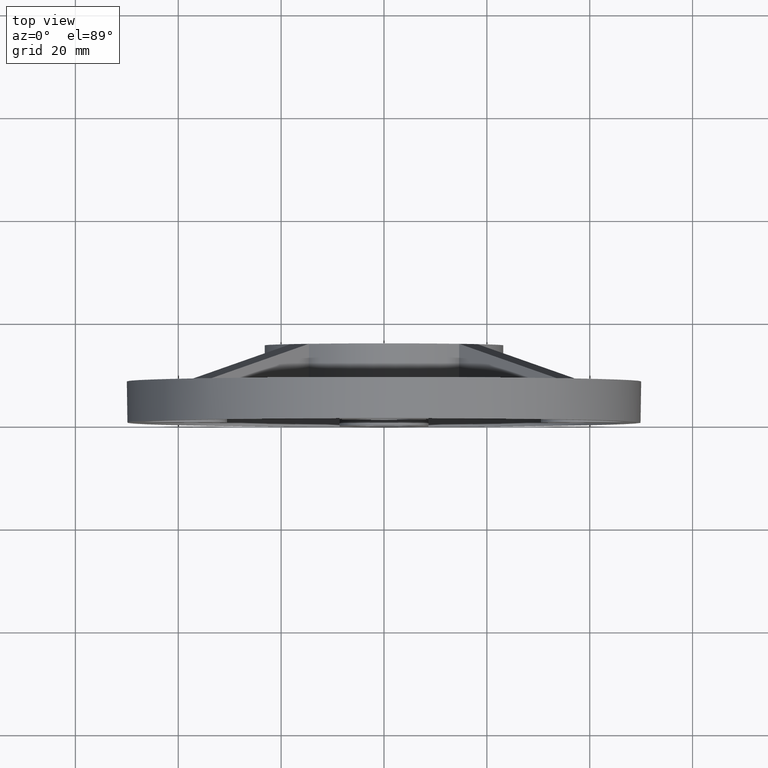
[diagram: clean part render]
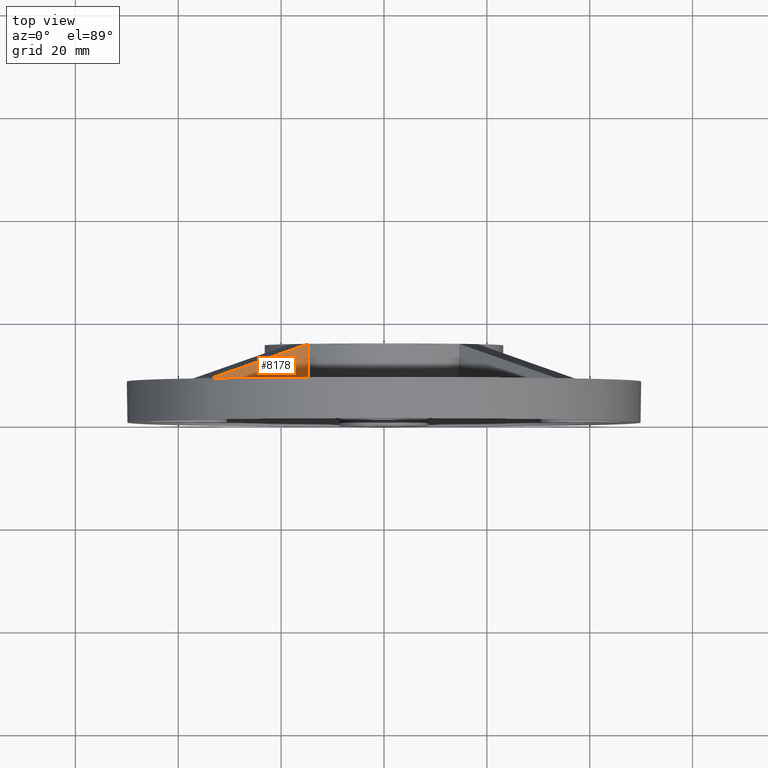
[diagram: same view with one face highlighted and labeled with its STEP entity id]
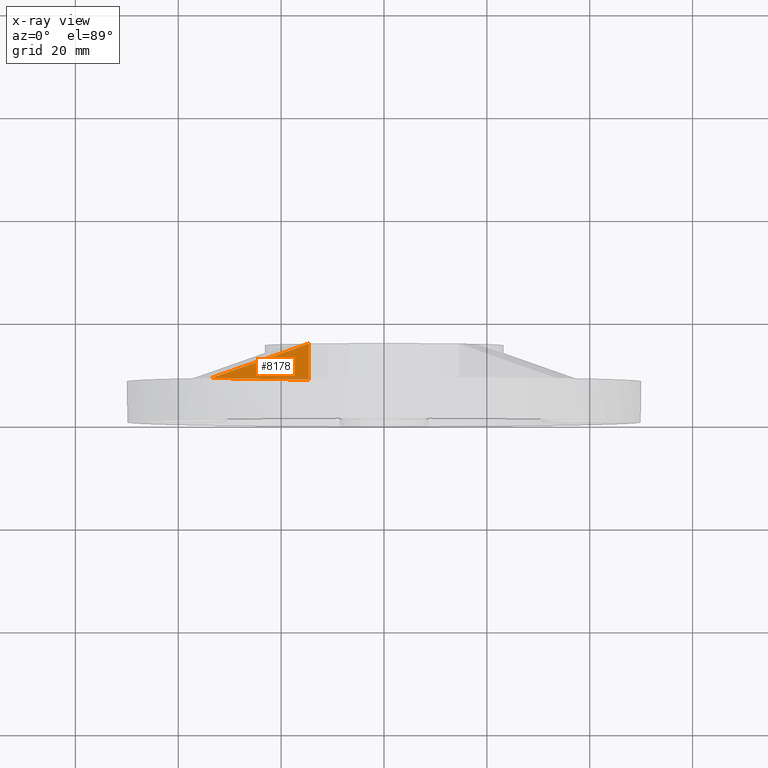
[diagram: x-ray of the same camera — body ghosted, the highlighted face saturated]
A machine part, top view. The second image highlights one B-rep face of the part: STEP entity #8178.
The next image is the same camera in x-ray: the body ghosted, the highlighted face saturated — about 6% of this face is hidden behind the body in this view.
In plain terms, the highlighted planar face has unit normal (-0.7071, 0, -0.7071).
Its self-contained STEP definition (entity closure, byte-faithful):
#587 = VERTEX_POINT ( 'NONE', #5414 ) ;
#700 = PLANE ( 'NONE',  #2635 ) ;
#1827 = CARTESIAN_POINT ( 'NONE',  ( -14.61270923058828153, 8.000000000000000000, 18.14824313652095711 ) ) ;
#1984 = VECTOR ( 'NONE', #3430, 999.9999999999998863 ) ;
#2635 = AXIS2_PLACEMENT_3D ( 'NONE', #6661, #5709, #9037 ) ;
#2703 = EDGE_LOOP ( 'NONE', ( #2907, #2832, #3196 ) ) ;
#2832 = ORIENTED_EDGE ( 'NONE', *, *, #7754, .T. ) ;
#2907 = ORIENTED_EDGE ( 'NONE', *, *, #4103, .F. ) ;
#3026 = LINE ( 'NONE', #3282, #9334 ) ;
#3196 = ORIENTED_EDGE ( 'NONE', *, *, #8785, .T. ) ;
#3282 = CARTESIAN_POINT ( 'NONE',  ( -9.114426070298650373, 17.03310506118020839, 12.64995997623135793 ) ) ;
#3430 = DIRECTION ( 'NONE',  ( 0.7071067811865486830, -0.000000000000000000, -0.7071067811865464625 ) ) ;
#3849 = DIRECTION ( 'NONE',  ( -0.6841087168591885037, -0.2529634895287306007, 0.6841087168591863943 ) ) ;
#4103 = EDGE_CURVE ( 'NONE', #7292, #7252, #6322, .T. ) ;
#4125 = VECTOR ( 'NONE', #4532, 1000.000000000000000 ) ;
#4532 = DIRECTION ( 'NONE',  ( -0.000000000000000000, -1.000000000000000000, -0.000000000000000000 ) ) ;
#5414 = CARTESIAN_POINT ( 'NONE',  ( -33.54335027659750779, 8.000000000000000000, 37.07888418253013896 ) ) ;
#5709 = DIRECTION ( 'NONE',  ( -0.7071067811865464625, 0.000000000000000000, -0.7071067811865486830 ) ) ;
#5878 = CARTESIAN_POINT ( 'NONE',  ( -14.61270923058825311, 15.00000000000000000, 18.14824313652095000 ) ) ;
#6322 = LINE ( 'NONE', #7035, #4125 ) ;
#6661 = CARTESIAN_POINT ( 'NONE',  ( -14.61270923058827265, 46.77196931168302996, 18.14824313652096421 ) ) ;
#7035 = CARTESIAN_POINT ( 'NONE',  ( -14.61270923058828153, 46.77196931168302996, 18.14824313652095711 ) ) ;
#7252 = VERTEX_POINT ( 'NONE', #1827 ) ;
#7292 = VERTEX_POINT ( 'NONE', #5878 ) ;
#7418 = FACE_OUTER_BOUND ( 'NONE', #2703, .T. ) ;
#7672 = CARTESIAN_POINT ( 'NONE',  ( -14.61270923058827265, 8.000000000000000000, 18.14824313652096421 ) ) ;
#7754 = EDGE_CURVE ( 'NONE', #7292, #587, #3026, .T. ) ;
#8178 = ADVANCED_FACE ( 'NONE', ( #7418 ), #700, .F. ) ;
#8785 = EDGE_CURVE ( 'NONE', #587, #7252, #9320, .T. ) ;
#9037 = DIRECTION ( 'NONE',  ( -0.7071067811865486830, 0.000000000000000000, 0.7071067811865464625 ) ) ;
#9320 = LINE ( 'NONE', #7672, #1984 ) ;
#9334 = VECTOR ( 'NONE', #3849, 1000.000000000000000 ) ;